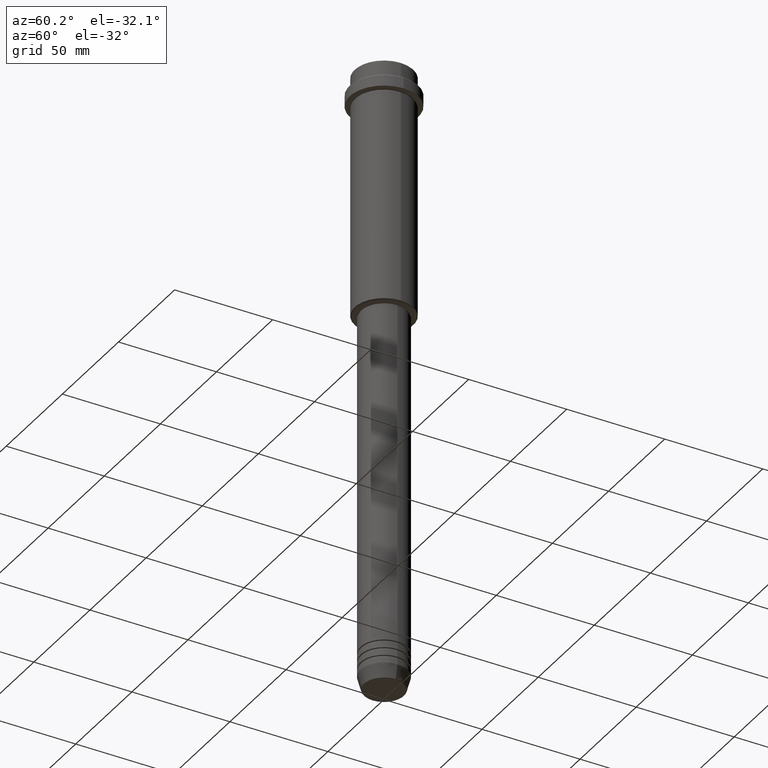
[diagram: clean part render]
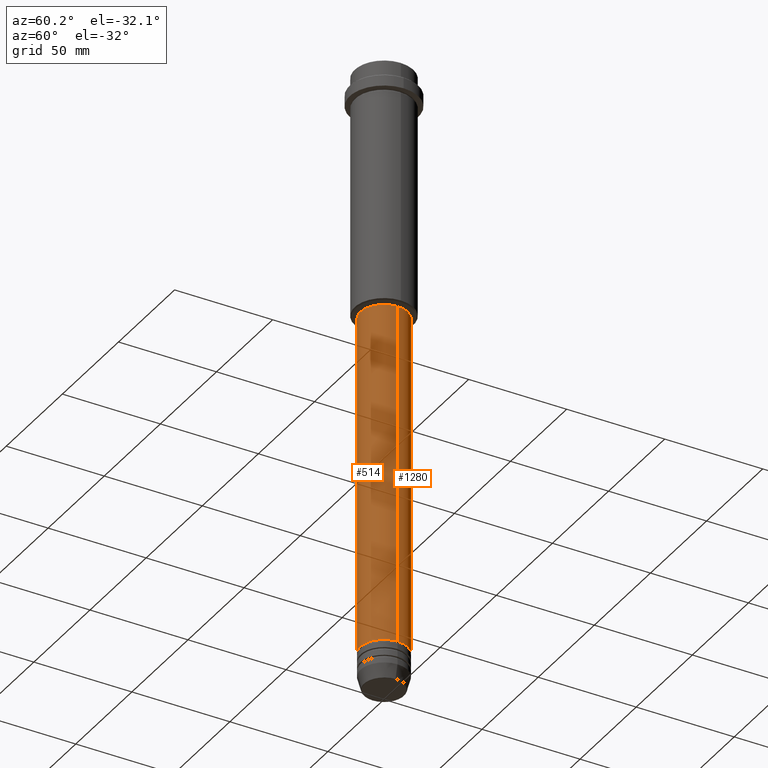
[diagram: same view with one multi-face feature highlighted, each face labeled with its STEP entity id]
A machine part, auxiliary view. The highlighted faces form ONE feature: a constant-radius fillet chain: 2 tangent blend faces with common blend radius 12 mm. The faces share edges in the B-rep.
Their STEP definitions:
[1] entity #1280 (Cylinder):
#6 = EDGE_CURVE ( 'NONE', #1147, #796, #1227, .T. ) ;
#81 = CARTESIAN_POINT ( 'NONE',  ( 12.00000000000000000, 0.000000000000000000, 0.000000000000000000 ) ) ;
#123 = DIRECTION ( 'NONE',  ( 1.000000000000000000, 0.000000000000000000, 0.000000000000000000 ) ) ;
#147 = ORIENTED_EDGE ( 'NONE', *, *, #1179, .T. ) ;
#187 = CIRCLE ( 'NONE', #1264, 12.00000000000000000 ) ;
#201 = LINE ( 'NONE', #81, #1386 ) ;
#293 = CARTESIAN_POINT ( 'NONE',  ( 12.00000000000000000, 0.000000000000000000, -300.9999999999998863 ) ) ;
#317 = DIRECTION ( 'NONE',  ( -0.000000000000000000, -0.000000000000000000, 1.000000000000000000 ) ) ;
#364 = DIRECTION ( 'NONE',  ( -0.000000000000000000, -0.000000000000000000, 1.000000000000000000 ) ) ;
#384 = CARTESIAN_POINT ( 'NONE',  ( -12.00000000000000000, 1.469576158976823947E-15, 0.000000000000000000 ) ) ;
#460 = DIRECTION ( 'NONE',  ( -0.000000000000000000, -0.000000000000000000, 1.000000000000000000 ) ) ;
#506 = DIRECTION ( 'NONE',  ( -0.000000000000000000, -0.000000000000000000, 1.000000000000000000 ) ) ;
#568 = AXIS2_PLACEMENT_3D ( 'NONE', #834, #317, #944 ) ;
#579 = ORIENTED_EDGE ( 'NONE', *, *, #1255, .F. ) ;
#626 = CARTESIAN_POINT ( 'NONE',  ( 0.000000000000000000, 0.000000000000000000, 0.000000000000000000 ) ) ;
#648 = EDGE_CURVE ( 'NONE', #923, #1314, #187, .T. ) ;
#677 = VECTOR ( 'NONE', #364, 1000.000000000000000 ) ;
#729 = AXIS2_PLACEMENT_3D ( 'NONE', #626, #1045, #951 ) ;
#767 = ORIENTED_EDGE ( 'NONE', *, *, #648, .T. ) ;
#796 = VERTEX_POINT ( 'NONE', #1271 ) ;
#807 = EDGE_LOOP ( 'NONE', ( #767, #147, #1214, #579 ) ) ;
#834 = CARTESIAN_POINT ( 'NONE',  ( 0.000000000000000000, 0.000000000000000000, -125.9999999999999147 ) ) ;
#849 = CARTESIAN_POINT ( 'NONE',  ( -12.00000000000000000, 1.469576158976823947E-15, -300.9999999999998863 ) ) ;
#900 = LINE ( 'NONE', #384, #677 ) ;
#923 = VERTEX_POINT ( 'NONE', #293 ) ;
#944 = DIRECTION ( 'NONE',  ( 1.000000000000000000, 0.000000000000000000, 0.000000000000000000 ) ) ;
#951 = DIRECTION ( 'NONE',  ( 1.000000000000000000, 0.000000000000000000, 0.000000000000000000 ) ) ;
#989 = CARTESIAN_POINT ( 'NONE',  ( 0.000000000000000000, 0.000000000000000000, -300.9999999999998863 ) ) ;
#1045 = DIRECTION ( 'NONE',  ( -0.000000000000000000, -0.000000000000000000, 1.000000000000000000 ) ) ;
#1054 = FACE_OUTER_BOUND ( 'NONE', #807, .T. ) ;
#1066 = CYLINDRICAL_SURFACE ( 'NONE', #729, 12.00000000000000000 ) ;
#1122 = CARTESIAN_POINT ( 'NONE',  ( 11.99999999999999822, 0.000000000000000000, -125.9999999999999147 ) ) ;
#1147 = VERTEX_POINT ( 'NONE', #1122 ) ;
#1179 = EDGE_CURVE ( 'NONE', #1314, #796, #900, .T. ) ;
#1214 = ORIENTED_EDGE ( 'NONE', *, *, #6, .F. ) ;
#1227 = CIRCLE ( 'NONE', #568, 11.99999999999999822 ) ;
#1255 = EDGE_CURVE ( 'NONE', #923, #1147, #201, .T. ) ;
#1264 = AXIS2_PLACEMENT_3D ( 'NONE', #989, #460, #123 ) ;
#1271 = CARTESIAN_POINT ( 'NONE',  ( -11.99999999999999822, 1.469576158976823750E-15, -125.9999999999999147 ) ) ;
#1280 = ADVANCED_FACE ( 'NONE', ( #1054 ), #1066, .T. ) ;
#1314 = VERTEX_POINT ( 'NONE', #849 ) ;
#1386 = VECTOR ( 'NONE', #506, 1000.000000000000000 ) ;
[2] entity #514 (Cylinder):
#7 = ORIENTED_EDGE ( 'NONE', *, *, #1082, .T. ) ;
#59 = DIRECTION ( 'NONE',  ( 1.000000000000000000, 0.000000000000000000, 0.000000000000000000 ) ) ;
#81 = CARTESIAN_POINT ( 'NONE',  ( 12.00000000000000000, 0.000000000000000000, 0.000000000000000000 ) ) ;
#121 = CARTESIAN_POINT ( 'NONE',  ( 0.000000000000000000, 0.000000000000000000, -300.9999999999998863 ) ) ;
#181 = AXIS2_PLACEMENT_3D ( 'NONE', #282, #1031, #59 ) ;
#201 = LINE ( 'NONE', #81, #1386 ) ;
#214 = CYLINDRICAL_SURFACE ( 'NONE', #1047, 12.00000000000000000 ) ;
#252 = ORIENTED_EDGE ( 'NONE', *, *, #1255, .T. ) ;
#282 = CARTESIAN_POINT ( 'NONE',  ( 0.000000000000000000, 0.000000000000000000, -125.9999999999999147 ) ) ;
#293 = CARTESIAN_POINT ( 'NONE',  ( 12.00000000000000000, 0.000000000000000000, -300.9999999999998863 ) ) ;
#364 = DIRECTION ( 'NONE',  ( -0.000000000000000000, -0.000000000000000000, 1.000000000000000000 ) ) ;
#384 = CARTESIAN_POINT ( 'NONE',  ( -12.00000000000000000, 1.469576158976823947E-15, 0.000000000000000000 ) ) ;
#425 = FACE_OUTER_BOUND ( 'NONE', #823, .T. ) ;
#497 = CIRCLE ( 'NONE', #181, 11.99999999999999822 ) ;
#506 = DIRECTION ( 'NONE',  ( -0.000000000000000000, -0.000000000000000000, 1.000000000000000000 ) ) ;
#514 = ADVANCED_FACE ( 'NONE', ( #425 ), #214, .T. ) ;
#556 = DIRECTION ( 'NONE',  ( -0.000000000000000000, -0.000000000000000000, 1.000000000000000000 ) ) ;
#585 = ORIENTED_EDGE ( 'NONE', *, *, #1179, .F. ) ;
#642 = CARTESIAN_POINT ( 'NONE',  ( 0.000000000000000000, 0.000000000000000000, 0.000000000000000000 ) ) ;
#662 = DIRECTION ( 'NONE',  ( -0.000000000000000000, -0.000000000000000000, 1.000000000000000000 ) ) ;
#677 = VECTOR ( 'NONE', #364, 1000.000000000000000 ) ;
#681 = DIRECTION ( 'NONE',  ( 1.000000000000000000, 0.000000000000000000, 0.000000000000000000 ) ) ;
#771 = EDGE_CURVE ( 'NONE', #796, #1147, #497, .T. ) ;
#796 = VERTEX_POINT ( 'NONE', #1271 ) ;
#823 = EDGE_LOOP ( 'NONE', ( #585, #7, #252, #1353 ) ) ;
#849 = CARTESIAN_POINT ( 'NONE',  ( -12.00000000000000000, 1.469576158976823947E-15, -300.9999999999998863 ) ) ;
#900 = LINE ( 'NONE', #384, #677 ) ;
#923 = VERTEX_POINT ( 'NONE', #293 ) ;
#1031 = DIRECTION ( 'NONE',  ( -0.000000000000000000, -0.000000000000000000, 1.000000000000000000 ) ) ;
#1047 = AXIS2_PLACEMENT_3D ( 'NONE', #642, #662, #1417 ) ;
#1082 = EDGE_CURVE ( 'NONE', #1314, #923, #1383, .T. ) ;
#1122 = CARTESIAN_POINT ( 'NONE',  ( 11.99999999999999822, 0.000000000000000000, -125.9999999999999147 ) ) ;
#1147 = VERTEX_POINT ( 'NONE', #1122 ) ;
#1158 = AXIS2_PLACEMENT_3D ( 'NONE', #121, #556, #681 ) ;
#1179 = EDGE_CURVE ( 'NONE', #1314, #796, #900, .T. ) ;
#1255 = EDGE_CURVE ( 'NONE', #923, #1147, #201, .T. ) ;
#1271 = CARTESIAN_POINT ( 'NONE',  ( -11.99999999999999822, 1.469576158976823750E-15, -125.9999999999999147 ) ) ;
#1314 = VERTEX_POINT ( 'NONE', #849 ) ;
#1353 = ORIENTED_EDGE ( 'NONE', *, *, #771, .F. ) ;
#1383 = CIRCLE ( 'NONE', #1158, 12.00000000000000000 ) ;
#1386 = VECTOR ( 'NONE', #506, 1000.000000000000000 ) ;
#1417 = DIRECTION ( 'NONE',  ( 1.000000000000000000, 0.000000000000000000, 0.000000000000000000 ) ) ;